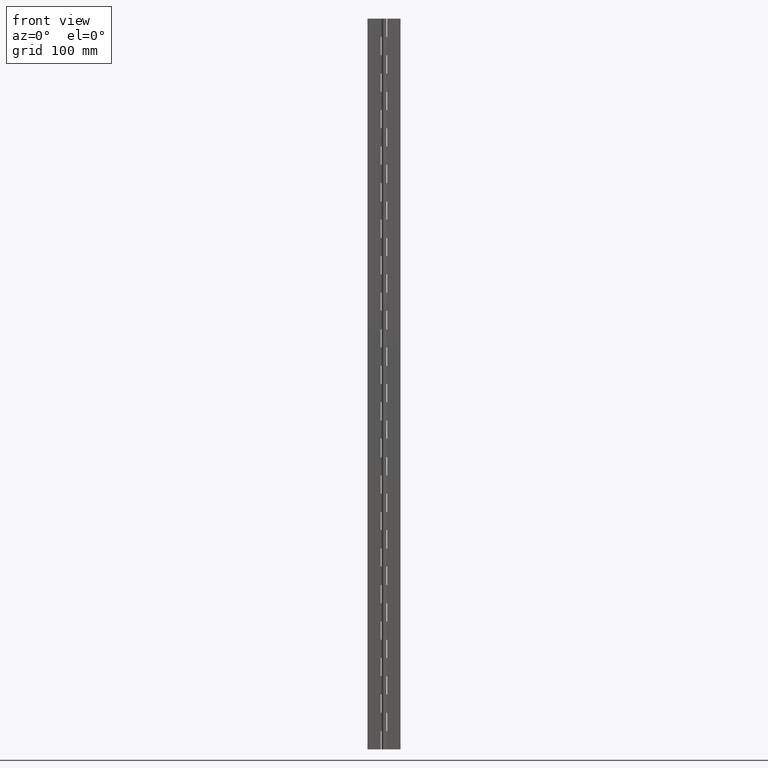
[diagram: clean part render]
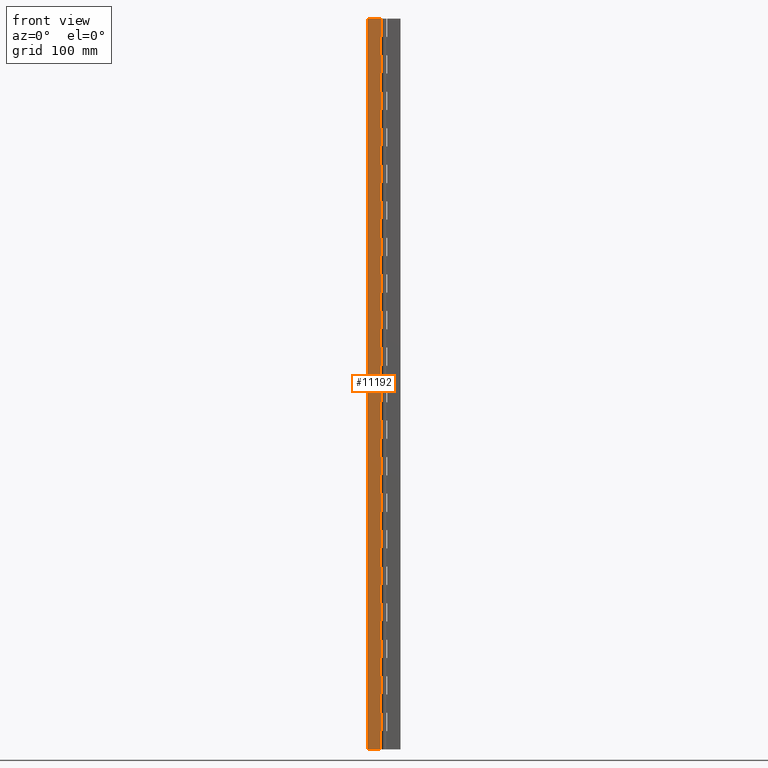
[diagram: same view with one face highlighted and labeled with its STEP entity id]
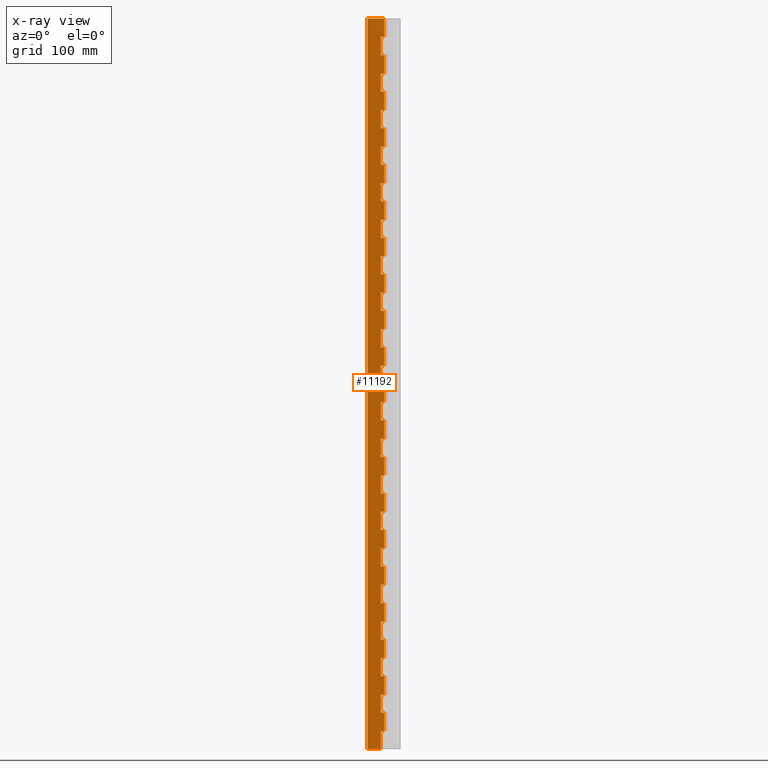
[diagram: x-ray of the same camera — body ghosted, the highlighted face saturated]
A machine part, front view. The second image highlights one B-rep face of the part: STEP entity #11192.
The next image is the same camera in x-ray: the body ghosted, the highlighted face saturated — about 0% of this face is hidden behind the body in this view.
In plain terms, the highlighted face is a freeform B-spline surface patch.
Its self-contained STEP definition (entity closure, byte-faithful):
#5908=CARTESIAN_POINT('',(-4.299995000000000,1.750000000000030,950.0));
#5909=VERTEX_POINT('',#5908);
#5915=CARTESIAN_POINT('',(0.0,1.750000000000000,950.0));
#5916=VERTEX_POINT('',#5915);
#5917=CARTESIAN_POINT('',(-4.299995000000000,1.750000000000030,950.0));
#5918=CARTESIAN_POINT('',(0.0,1.750000000000000,950.0));
#5919=QUASI_UNIFORM_CURVE('',1,(#5917,#5918),.UNSPECIFIED.,.F.,.U.);
#5920=EDGE_CURVE('',#5909,#5916,#5919,.T.);
#5986=CARTESIAN_POINT('',(0.0,1.750000000000000,975.0));
#5987=VERTEX_POINT('',#5986);
#6007=CARTESIAN_POINT('',(-4.299995000000000,1.750000000000030,975.0));
#6008=VERTEX_POINT('',#6007);
#6009=CARTESIAN_POINT('',(0.0,1.750000000000000,975.0));
#6010=CARTESIAN_POINT('',(-4.299995000000000,1.750000000000030,975.0));
#6011=QUASI_UNIFORM_CURVE('',1,(#6009,#6010),.UNSPECIFIED.,.F.,.U.);
#6012=EDGE_CURVE('',#5987,#6008,#6011,.T.);
#6034=CARTESIAN_POINT('',(-4.299995000000000,1.750000000000030,975.0));
#6035=CARTESIAN_POINT('',(-4.299995000000000,1.750000000000030,950.0));
#6036=QUASI_UNIFORM_CURVE('',1,(#6034,#6035),.UNSPECIFIED.,.F.,.U.);
#6037=EDGE_CURVE('',#6008,#5909,#6036,.T.);
#6084=CARTESIAN_POINT('',(-4.299995000000000,1.750000000000030,900.0));
#6085=VERTEX_POINT('',#6084);
#6091=CARTESIAN_POINT('',(0.0,1.750000000000000,900.0));
#6092=VERTEX_POINT('',#6091);
#6093=CARTESIAN_POINT('',(-4.299995000000000,1.750000000000030,900.0));
#6094=CARTESIAN_POINT('',(0.0,1.750000000000000,900.0));
#6095=QUASI_UNIFORM_CURVE('',1,(#6093,#6094),.UNSPECIFIED.,.F.,.U.);
#6096=EDGE_CURVE('',#6085,#6092,#6095,.T.);
#6162=CARTESIAN_POINT('',(0.0,1.750000000000000,925.0));
#6163=VERTEX_POINT('',#6162);
#6183=CARTESIAN_POINT('',(-4.299995000000000,1.750000000000030,925.0));
#6184=VERTEX_POINT('',#6183);
#6185=CARTESIAN_POINT('',(0.0,1.750000000000000,925.0));
#6186=CARTESIAN_POINT('',(-4.299995000000000,1.750000000000030,925.0));
#6187=QUASI_UNIFORM_CURVE('',1,(#6185,#6186),.UNSPECIFIED.,.F.,.U.);
#6188=EDGE_CURVE('',#6163,#6184,#6187,.T.);
#6210=CARTESIAN_POINT('',(-4.299995000000000,1.750000000000030,925.0));
#6211=CARTESIAN_POINT('',(-4.299995000000000,1.750000000000030,900.0));
#6212=QUASI_UNIFORM_CURVE('',1,(#6210,#6211),.UNSPECIFIED.,.F.,.U.);
#6213=EDGE_CURVE('',#6184,#6085,#6212,.T.);
#6260=CARTESIAN_POINT('',(-4.299995000000000,1.750000000000030,850.0));
#6261=VERTEX_POINT('',#6260);
#6267=CARTESIAN_POINT('',(0.0,1.750000000000000,850.0));
#6268=VERTEX_POINT('',#6267);
#6269=CARTESIAN_POINT('',(-4.299995000000000,1.750000000000030,850.0));
#6270=CARTESIAN_POINT('',(0.0,1.750000000000000,850.0));
#6271=QUASI_UNIFORM_CURVE('',1,(#6269,#6270),.UNSPECIFIED.,.F.,.U.);
#6272=EDGE_CURVE('',#6261,#6268,#6271,.T.);
#6338=CARTESIAN_POINT('',(0.0,1.750000000000000,875.0));
#6339=VERTEX_POINT('',#6338);
#6359=CARTESIAN_POINT('',(-4.299995000000000,1.750000000000030,875.0));
#6360=VERTEX_POINT('',#6359);
#6361=CARTESIAN_POINT('',(0.0,1.750000000000000,875.0));
#6362=CARTESIAN_POINT('',(-4.299995000000000,1.750000000000030,875.0));
#6363=QUASI_UNIFORM_CURVE('',1,(#6361,#6362),.UNSPECIFIED.,.F.,.U.);
#6364=EDGE_CURVE('',#6339,#6360,#6363,.T.);
#6386=CARTESIAN_POINT('',(-4.299995000000000,1.750000000000030,875.0));
#6387=CARTESIAN_POINT('',(-4.299995000000000,1.750000000000030,850.0));
#6388=QUASI_UNIFORM_CURVE('',1,(#6386,#6387),.UNSPECIFIED.,.F.,.U.);
#6389=EDGE_CURVE('',#6360,#6261,#6388,.T.);
#6436=CARTESIAN_POINT('',(-4.299995000000000,1.750000000000030,800.0));
#6437=VERTEX_POINT('',#6436);
#6443=CARTESIAN_POINT('',(0.0,1.750000000000000,800.0));
#6444=VERTEX_POINT('',#6443);
#6445=CARTESIAN_POINT('',(-4.299995000000000,1.750000000000030,800.0));
#6446=CARTESIAN_POINT('',(0.0,1.750000000000000,800.0));
#6447=QUASI_UNIFORM_CURVE('',1,(#6445,#6446),.UNSPECIFIED.,.F.,.U.);
#6448=EDGE_CURVE('',#6437,#6444,#6447,.T.);
#6514=CARTESIAN_POINT('',(0.0,1.750000000000000,825.0));
#6515=VERTEX_POINT('',#6514);
#6535=CARTESIAN_POINT('',(-4.299995000000000,1.750000000000030,825.0));
#6536=VERTEX_POINT('',#6535);
#6537=CARTESIAN_POINT('',(0.0,1.750000000000000,825.0));
#6538=CARTESIAN_POINT('',(-4.299995000000000,1.750000000000030,825.0));
#6539=QUASI_UNIFORM_CURVE('',1,(#6537,#6538),.UNSPECIFIED.,.F.,.U.);
#6540=EDGE_CURVE('',#6515,#6536,#6539,.T.);
#6562=CARTESIAN_POINT('',(-4.299995000000000,1.750000000000030,825.0));
#6563=CARTESIAN_POINT('',(-4.299995000000000,1.750000000000030,800.0));
#6564=QUASI_UNIFORM_CURVE('',1,(#6562,#6563),.UNSPECIFIED.,.F.,.U.);
#6565=EDGE_CURVE('',#6536,#6437,#6564,.T.);
#6612=CARTESIAN_POINT('',(-4.299995000000000,1.750000000000030,750.0));
#6613=VERTEX_POINT('',#6612);
#6619=CARTESIAN_POINT('',(0.0,1.750000000000000,750.0));
#6620=VERTEX_POINT('',#6619);
#6621=CARTESIAN_POINT('',(-4.299995000000000,1.750000000000030,750.0));
#6622=CARTESIAN_POINT('',(0.0,1.750000000000000,750.0));
#6623=QUASI_UNIFORM_CURVE('',1,(#6621,#6622),.UNSPECIFIED.,.F.,.U.);
#6624=EDGE_CURVE('',#6613,#6620,#6623,.T.);
#6690=CARTESIAN_POINT('',(0.0,1.750000000000000,775.0));
#6691=VERTEX_POINT('',#6690);
#6711=CARTESIAN_POINT('',(-4.299995000000000,1.750000000000030,775.0));
#6712=VERTEX_POINT('',#6711);
#6713=CARTESIAN_POINT('',(0.0,1.750000000000000,775.0));
#6714=CARTESIAN_POINT('',(-4.299995000000000,1.750000000000030,775.0));
#6715=QUASI_UNIFORM_CURVE('',1,(#6713,#6714),.UNSPECIFIED.,.F.,.U.);
#6716=EDGE_CURVE('',#6691,#6712,#6715,.T.);
#6738=CARTESIAN_POINT('',(-4.299995000000000,1.750000000000030,775.0));
#6739=CARTESIAN_POINT('',(-4.299995000000000,1.750000000000030,750.0));
#6740=QUASI_UNIFORM_CURVE('',1,(#6738,#6739),.UNSPECIFIED.,.F.,.U.);
#6741=EDGE_CURVE('',#6712,#6613,#6740,.T.);
#6788=CARTESIAN_POINT('',(-4.299995000000000,1.750000000000030,700.0));
#6789=VERTEX_POINT('',#6788);
#6795=CARTESIAN_POINT('',(0.0,1.750000000000000,700.0));
#6796=VERTEX_POINT('',#6795);
#6797=CARTESIAN_POINT('',(-4.299995000000000,1.750000000000030,700.0));
#6798=CARTESIAN_POINT('',(0.0,1.750000000000000,700.0));
#6799=QUASI_UNIFORM_CURVE('',1,(#6797,#6798),.UNSPECIFIED.,.F.,.U.);
#6800=EDGE_CURVE('',#6789,#6796,#6799,.T.);
#6866=CARTESIAN_POINT('',(0.0,1.750000000000000,725.0));
#6867=VERTEX_POINT('',#6866);
#6887=CARTESIAN_POINT('',(-4.299995000000000,1.750000000000030,725.0));
#6888=VERTEX_POINT('',#6887);
#6889=CARTESIAN_POINT('',(0.0,1.750000000000000,725.0));
#6890=CARTESIAN_POINT('',(-4.299995000000000,1.750000000000030,725.0));
#6891=QUASI_UNIFORM_CURVE('',1,(#6889,#6890),.UNSPECIFIED.,.F.,.U.);
#6892=EDGE_CURVE('',#6867,#6888,#6891,.T.);
#6914=CARTESIAN_POINT('',(-4.299995000000000,1.750000000000030,725.0));
#6915=CARTESIAN_POINT('',(-4.299995000000000,1.750000000000030,700.0));
#6916=QUASI_UNIFORM_CURVE('',1,(#6914,#6915),.UNSPECIFIED.,.F.,.U.);
#6917=EDGE_CURVE('',#6888,#6789,#6916,.T.);
#6964=CARTESIAN_POINT('',(-4.299995000000000,1.750000000000030,650.0));
#6965=VERTEX_POINT('',#6964);
#6971=CARTESIAN_POINT('',(0.0,1.750000000000000,650.0));
#6972=VERTEX_POINT('',#6971);
#6973=CARTESIAN_POINT('',(-4.299995000000000,1.750000000000030,650.0));
#6974=CARTESIAN_POINT('',(0.0,1.750000000000000,650.0));
#6975=QUASI_UNIFORM_CURVE('',1,(#6973,#6974),.UNSPECIFIED.,.F.,.U.);
#6976=EDGE_CURVE('',#6965,#6972,#6975,.T.);
#7042=CARTESIAN_POINT('',(0.0,1.750000000000000,675.0));
#7043=VERTEX_POINT('',#7042);
#7063=CARTESIAN_POINT('',(-4.299995000000000,1.750000000000030,675.0));
#7064=VERTEX_POINT('',#7063);
#7065=CARTESIAN_POINT('',(0.0,1.750000000000000,675.0));
#7066=CARTESIAN_POINT('',(-4.299995000000000,1.750000000000030,675.0));
#7067=QUASI_UNIFORM_CURVE('',1,(#7065,#7066),.UNSPECIFIED.,.F.,.U.);
#7068=EDGE_CURVE('',#7043,#7064,#7067,.T.);
#7090=CARTESIAN_POINT('',(-4.299995000000000,1.750000000000030,675.0));
#7091=CARTESIAN_POINT('',(-4.299995000000000,1.750000000000030,650.0));
#7092=QUASI_UNIFORM_CURVE('',1,(#7090,#7091),.UNSPECIFIED.,.F.,.U.);
#7093=EDGE_CURVE('',#7064,#6965,#7092,.T.);
#7140=CARTESIAN_POINT('',(-4.299995000000000,1.750000000000030,600.0));
#7141=VERTEX_POINT('',#7140);
#7147=CARTESIAN_POINT('',(0.0,1.750000000000000,600.0));
#7148=VERTEX_POINT('',#7147);
#7149=CARTESIAN_POINT('',(-4.299995000000000,1.750000000000030,600.0));
#7150=CARTESIAN_POINT('',(0.0,1.750000000000000,600.0));
#7151=QUASI_UNIFORM_CURVE('',1,(#7149,#7150),.UNSPECIFIED.,.F.,.U.);
#7152=EDGE_CURVE('',#7141,#7148,#7151,.T.);
#7218=CARTESIAN_POINT('',(0.0,1.750000000000000,625.0));
#7219=VERTEX_POINT('',#7218);
#7239=CARTESIAN_POINT('',(-4.299995000000000,1.750000000000030,625.0));
#7240=VERTEX_POINT('',#7239);
#7241=CARTESIAN_POINT('',(0.0,1.750000000000000,625.0));
#7242=CARTESIAN_POINT('',(-4.299995000000000,1.750000000000030,625.0));
#7243=QUASI_UNIFORM_CURVE('',1,(#7241,#7242),.UNSPECIFIED.,.F.,.U.);
#7244=EDGE_CURVE('',#7219,#7240,#7243,.T.);
#7266=CARTESIAN_POINT('',(-4.299995000000000,1.750000000000030,625.0));
#7267=CARTESIAN_POINT('',(-4.299995000000000,1.750000000000030,600.0));
#7268=QUASI_UNIFORM_CURVE('',1,(#7266,#7267),.UNSPECIFIED.,.F.,.U.);
#7269=EDGE_CURVE('',#7240,#7141,#7268,.T.);
#7316=CARTESIAN_POINT('',(-4.299995000000000,1.750000000000030,550.0));
#7317=VERTEX_POINT('',#7316);
#7323=CARTESIAN_POINT('',(0.0,1.750000000000000,550.0));
#7324=VERTEX_POINT('',#7323);
#7325=CARTESIAN_POINT('',(-4.299995000000000,1.750000000000030,550.0));
#7326=CARTESIAN_POINT('',(0.0,1.750000000000000,550.0));
#7327=QUASI_UNIFORM_CURVE('',1,(#7325,#7326),.UNSPECIFIED.,.F.,.U.);
#7328=EDGE_CURVE('',#7317,#7324,#7327,.T.);
#7394=CARTESIAN_POINT('',(0.0,1.750000000000000,575.0));
#7395=VERTEX_POINT('',#7394);
#7415=CARTESIAN_POINT('',(-4.299995000000000,1.750000000000030,575.0));
#7416=VERTEX_POINT('',#7415);
#7417=CARTESIAN_POINT('',(0.0,1.750000000000000,575.0));
#7418=CARTESIAN_POINT('',(-4.299995000000000,1.750000000000030,575.0));
#7419=QUASI_UNIFORM_CURVE('',1,(#7417,#7418),.UNSPECIFIED.,.F.,.U.);
#7420=EDGE_CURVE('',#7395,#7416,#7419,.T.);
#7442=CARTESIAN_POINT('',(-4.299995000000000,1.750000000000030,575.0));
#7443=CARTESIAN_POINT('',(-4.299995000000000,1.750000000000030,550.0));
#7444=QUASI_UNIFORM_CURVE('',1,(#7442,#7443),.UNSPECIFIED.,.F.,.U.);
#7445=EDGE_CURVE('',#7416,#7317,#7444,.T.);
#7492=CARTESIAN_POINT('',(-4.299995000000000,1.750000000000030,500.0));
#7493=VERTEX_POINT('',#7492);
#7499=CARTESIAN_POINT('',(0.0,1.750000000000000,500.0));
#7500=VERTEX_POINT('',#7499);
#7501=CARTESIAN_POINT('',(-4.299995000000000,1.750000000000030,500.0));
#7502=CARTESIAN_POINT('',(0.0,1.750000000000000,500.0));
#7503=QUASI_UNIFORM_CURVE('',1,(#7501,#7502),.UNSPECIFIED.,.F.,.U.);
#7504=EDGE_CURVE('',#7493,#7500,#7503,.T.);
#7570=CARTESIAN_POINT('',(0.0,1.750000000000000,525.0));
#7571=VERTEX_POINT('',#7570);
#7591=CARTESIAN_POINT('',(-4.299995000000000,1.750000000000030,525.0));
#7592=VERTEX_POINT('',#7591);
#7593=CARTESIAN_POINT('',(0.0,1.750000000000000,525.0));
#7594=CARTESIAN_POINT('',(-4.299995000000000,1.750000000000030,525.0));
#7595=QUASI_UNIFORM_CURVE('',1,(#7593,#7594),.UNSPECIFIED.,.F.,.U.);
#7596=EDGE_CURVE('',#7571,#7592,#7595,.T.);
#7618=CARTESIAN_POINT('',(-4.299995000000000,1.750000000000030,525.0));
#7619=CARTESIAN_POINT('',(-4.299995000000000,1.750000000000030,500.0));
#7620=QUASI_UNIFORM_CURVE('',1,(#7618,#7619),.UNSPECIFIED.,.F.,.U.);
#7621=EDGE_CURVE('',#7592,#7493,#7620,.T.);
#7668=CARTESIAN_POINT('',(-4.299995000000000,1.750000000000030,450.0));
#7669=VERTEX_POINT('',#7668);
#7675=CARTESIAN_POINT('',(0.0,1.750000000000000,450.0));
#7676=VERTEX_POINT('',#7675);
#7677=CARTESIAN_POINT('',(-4.299995000000000,1.750000000000030,450.0));
#7678=CARTESIAN_POINT('',(0.0,1.750000000000000,450.0));
#7679=QUASI_UNIFORM_CURVE('',1,(#7677,#7678),.UNSPECIFIED.,.F.,.U.);
#7680=EDGE_CURVE('',#7669,#7676,#7679,.T.);
#7746=CARTESIAN_POINT('',(0.0,1.750000000000000,475.0));
#7747=VERTEX_POINT('',#7746);
#7767=CARTESIAN_POINT('',(-4.299995000000000,1.750000000000030,475.0));
#7768=VERTEX_POINT('',#7767);
#7769=CARTESIAN_POINT('',(0.0,1.750000000000000,475.0));
#7770=CARTESIAN_POINT('',(-4.299995000000000,1.750000000000030,475.0));
#7771=QUASI_UNIFORM_CURVE('',1,(#7769,#7770),.UNSPECIFIED.,.F.,.U.);
#7772=EDGE_CURVE('',#7747,#7768,#7771,.T.);
#7794=CARTESIAN_POINT('',(-4.299995000000000,1.750000000000030,475.0));
#7795=CARTESIAN_POINT('',(-4.299995000000000,1.750000000000030,450.0));
#7796=QUASI_UNIFORM_CURVE('',1,(#7794,#7795),.UNSPECIFIED.,.F.,.U.);
#7797=EDGE_CURVE('',#7768,#7669,#7796,.T.);
#7844=CARTESIAN_POINT('',(-4.299995000000000,1.750000000000030,400.0));
#7845=VERTEX_POINT('',#7844);
#7851=CARTESIAN_POINT('',(0.0,1.750000000000000,400.0));
#7852=VERTEX_POINT('',#7851);
#7853=CARTESIAN_POINT('',(-4.299995000000000,1.750000000000030,400.0));
#7854=CARTESIAN_POINT('',(0.0,1.750000000000000,400.0));
#7855=QUASI_UNIFORM_CURVE('',1,(#7853,#7854),.UNSPECIFIED.,.F.,.U.);
#7856=EDGE_CURVE('',#7845,#7852,#7855,.T.);
#7922=CARTESIAN_POINT('',(0.0,1.750000000000000,425.0));
#7923=VERTEX_POINT('',#7922);
#7943=CARTESIAN_POINT('',(-4.299995000000000,1.750000000000030,425.0));
#7944=VERTEX_POINT('',#7943);
#7945=CARTESIAN_POINT('',(0.0,1.750000000000000,425.0));
#7946=CARTESIAN_POINT('',(-4.299995000000000,1.750000000000030,425.0));
#7947=QUASI_UNIFORM_CURVE('',1,(#7945,#7946),.UNSPECIFIED.,.F.,.U.);
#7948=EDGE_CURVE('',#7923,#7944,#7947,.T.);
#7970=CARTESIAN_POINT('',(-4.299995000000000,1.750000000000030,425.0));
#7971=CARTESIAN_POINT('',(-4.299995000000000,1.750000000000030,400.0));
#7972=QUASI_UNIFORM_CURVE('',1,(#7970,#7971),.UNSPECIFIED.,.F.,.U.);
#7973=EDGE_CURVE('',#7944,#7845,#7972,.T.);
#8020=CARTESIAN_POINT('',(-4.299995000000000,1.750000000000030,350.0));
#8021=VERTEX_POINT('',#8020);
#8027=CARTESIAN_POINT('',(0.0,1.750000000000000,350.0));
#8028=VERTEX_POINT('',#8027);
#8029=CARTESIAN_POINT('',(-4.299995000000000,1.750000000000030,350.0));
#8030=CARTESIAN_POINT('',(0.0,1.750000000000000,350.0));
#8031=QUASI_UNIFORM_CURVE('',1,(#8029,#8030),.UNSPECIFIED.,.F.,.U.);
#8032=EDGE_CURVE('',#8021,#8028,#8031,.T.);
#8098=CARTESIAN_POINT('',(0.0,1.750000000000000,375.0));
#8099=VERTEX_POINT('',#8098);
#8119=CARTESIAN_POINT('',(-4.299995000000000,1.750000000000030,375.0));
#8120=VERTEX_POINT('',#8119);
#8121=CARTESIAN_POINT('',(0.0,1.750000000000000,375.0));
#8122=CARTESIAN_POINT('',(-4.299995000000000,1.750000000000030,375.0));
#8123=QUASI_UNIFORM_CURVE('',1,(#8121,#8122),.UNSPECIFIED.,.F.,.U.);
#8124=EDGE_CURVE('',#8099,#8120,#8123,.T.);
#8146=CARTESIAN_POINT('',(-4.299995000000000,1.750000000000030,375.0));
#8147=CARTESIAN_POINT('',(-4.299995000000000,1.750000000000030,350.0));
#8148=QUASI_UNIFORM_CURVE('',1,(#8146,#8147),.UNSPECIFIED.,.F.,.U.);
#8149=EDGE_CURVE('',#8120,#8021,#8148,.T.);
#8196=CARTESIAN_POINT('',(-4.299995000000000,1.750000000000030,300.0));
#8197=VERTEX_POINT('',#8196);
#8203=CARTESIAN_POINT('',(0.0,1.750000000000000,300.0));
#8204=VERTEX_POINT('',#8203);
#8205=CARTESIAN_POINT('',(-4.299995000000000,1.750000000000030,300.0));
#8206=CARTESIAN_POINT('',(0.0,1.750000000000000,300.0));
#8207=QUASI_UNIFORM_CURVE('',1,(#8205,#8206),.UNSPECIFIED.,.F.,.U.);
#8208=EDGE_CURVE('',#8197,#8204,#8207,.T.);
#8274=CARTESIAN_POINT('',(0.0,1.750000000000000,325.0));
#8275=VERTEX_POINT('',#8274);
#8295=CARTESIAN_POINT('',(-4.299995000000000,1.750000000000030,325.0));
#8296=VERTEX_POINT('',#8295);
#8297=CARTESIAN_POINT('',(0.0,1.750000000000000,325.0));
#8298=CARTESIAN_POINT('',(-4.299995000000000,1.750000000000030,325.0));
#8299=QUASI_UNIFORM_CURVE('',1,(#8297,#8298),.UNSPECIFIED.,.F.,.U.);
#8300=EDGE_CURVE('',#8275,#8296,#8299,.T.);
#8322=CARTESIAN_POINT('',(-4.299995000000000,1.750000000000030,325.0));
#8323=CARTESIAN_POINT('',(-4.299995000000000,1.750000000000030,300.0));
#8324=QUASI_UNIFORM_CURVE('',1,(#8322,#8323),.UNSPECIFIED.,.F.,.U.);
#8325=EDGE_CURVE('',#8296,#8197,#8324,.T.);
#8372=CARTESIAN_POINT('',(-4.299995000000000,1.750000000000030,250.0));
#8373=VERTEX_POINT('',#8372);
#8379=CARTESIAN_POINT('',(0.0,1.750000000000000,250.0));
#8380=VERTEX_POINT('',#8379);
#8381=CARTESIAN_POINT('',(-4.299995000000000,1.750000000000030,250.0));
#8382=CARTESIAN_POINT('',(0.0,1.750000000000000,250.0));
#8383=QUASI_UNIFORM_CURVE('',1,(#8381,#8382),.UNSPECIFIED.,.F.,.U.);
#8384=EDGE_CURVE('',#8373,#8380,#8383,.T.);
#8450=CARTESIAN_POINT('',(0.0,1.750000000000000,275.0));
#8451=VERTEX_POINT('',#8450);
#8471=CARTESIAN_POINT('',(-4.299995000000000,1.750000000000030,275.0));
#8472=VERTEX_POINT('',#8471);
#8473=CARTESIAN_POINT('',(0.0,1.750000000000000,275.0));
#8474=CARTESIAN_POINT('',(-4.299995000000000,1.750000000000030,275.0));
#8475=QUASI_UNIFORM_CURVE('',1,(#8473,#8474),.UNSPECIFIED.,.F.,.U.);
#8476=EDGE_CURVE('',#8451,#8472,#8475,.T.);
#8498=CARTESIAN_POINT('',(-4.299995000000000,1.750000000000030,275.0));
#8499=CARTESIAN_POINT('',(-4.299995000000000,1.750000000000030,250.0));
#8500=QUASI_UNIFORM_CURVE('',1,(#8498,#8499),.UNSPECIFIED.,.F.,.U.);
#8501=EDGE_CURVE('',#8472,#8373,#8500,.T.);
#8548=CARTESIAN_POINT('',(-4.299995000000000,1.750000000000030,200.0));
#8549=VERTEX_POINT('',#8548);
#8555=CARTESIAN_POINT('',(0.0,1.750000000000000,200.0));
#8556=VERTEX_POINT('',#8555);
#8557=CARTESIAN_POINT('',(-4.299995000000000,1.750000000000030,200.0));
#8558=CARTESIAN_POINT('',(0.0,1.750000000000000,200.0));
#8559=QUASI_UNIFORM_CURVE('',1,(#8557,#8558),.UNSPECIFIED.,.F.,.U.);
#8560=EDGE_CURVE('',#8549,#8556,#8559,.T.);
#8626=CARTESIAN_POINT('',(0.0,1.750000000000000,225.0));
#8627=VERTEX_POINT('',#8626);
#8647=CARTESIAN_POINT('',(-4.299995000000000,1.750000000000030,225.0));
#8648=VERTEX_POINT('',#8647);
#8649=CARTESIAN_POINT('',(0.0,1.750000000000000,225.0));
#8650=CARTESIAN_POINT('',(-4.299995000000000,1.750000000000030,225.0));
#8651=QUASI_UNIFORM_CURVE('',1,(#8649,#8650),.UNSPECIFIED.,.F.,.U.);
#8652=EDGE_CURVE('',#8627,#8648,#8651,.T.);
#8674=CARTESIAN_POINT('',(-4.299995000000000,1.750000000000030,225.0));
#8675=CARTESIAN_POINT('',(-4.299995000000000,1.750000000000030,200.0));
#8676=QUASI_UNIFORM_CURVE('',1,(#8674,#8675),.UNSPECIFIED.,.F.,.U.);
#8677=EDGE_CURVE('',#8648,#8549,#8676,.T.);
#8724=CARTESIAN_POINT('',(-4.299995000000000,1.750000000000030,150.0));
#8725=VERTEX_POINT('',#8724);
#8731=CARTESIAN_POINT('',(0.0,1.750000000000000,150.0));
#8732=VERTEX_POINT('',#8731);
#8733=CARTESIAN_POINT('',(-4.299995000000000,1.750000000000030,150.0));
#8734=CARTESIAN_POINT('',(0.0,1.750000000000000,150.0));
#8735=QUASI_UNIFORM_CURVE('',1,(#8733,#8734),.UNSPECIFIED.,.F.,.U.);
#8736=EDGE_CURVE('',#8725,#8732,#8735,.T.);
#8802=CARTESIAN_POINT('',(0.0,1.750000000000000,175.0));
#8803=VERTEX_POINT('',#8802);
#8823=CARTESIAN_POINT('',(-4.299995000000000,1.750000000000030,175.0));
#8824=VERTEX_POINT('',#8823);
#8825=CARTESIAN_POINT('',(0.0,1.750000000000000,175.0));
#8826=CARTESIAN_POINT('',(-4.299995000000000,1.750000000000030,175.0));
#8827=QUASI_UNIFORM_CURVE('',1,(#8825,#8826),.UNSPECIFIED.,.F.,.U.);
#8828=EDGE_CURVE('',#8803,#8824,#8827,.T.);
#8850=CARTESIAN_POINT('',(-4.299995000000000,1.750000000000030,175.0));
#8851=CARTESIAN_POINT('',(-4.299995000000000,1.750000000000030,150.0));
#8852=QUASI_UNIFORM_CURVE('',1,(#8850,#8851),.UNSPECIFIED.,.F.,.U.);
#8853=EDGE_CURVE('',#8824,#8725,#8852,.T.);
#8900=CARTESIAN_POINT('',(-4.299995000000000,1.750000000000030,100.0));
#8901=VERTEX_POINT('',#8900);
#8907=CARTESIAN_POINT('',(0.0,1.750000000000000,100.0));
#8908=VERTEX_POINT('',#8907);
#8909=CARTESIAN_POINT('',(-4.299995000000000,1.750000000000030,100.0));
#8910=CARTESIAN_POINT('',(0.0,1.750000000000000,100.0));
#8911=QUASI_UNIFORM_CURVE('',1,(#8909,#8910),.UNSPECIFIED.,.F.,.U.);
#8912=EDGE_CURVE('',#8901,#8908,#8911,.T.);
#8978=CARTESIAN_POINT('',(0.0,1.750000000000000,125.0));
#8979=VERTEX_POINT('',#8978);
#8999=CARTESIAN_POINT('',(-4.299995000000000,1.750000000000030,125.0));
#9000=VERTEX_POINT('',#8999);
#9001=CARTESIAN_POINT('',(0.0,1.750000000000000,125.0));
#9002=CARTESIAN_POINT('',(-4.299995000000000,1.750000000000030,125.0));
#9003=QUASI_UNIFORM_CURVE('',1,(#9001,#9002),.UNSPECIFIED.,.F.,.U.);
#9004=EDGE_CURVE('',#8979,#9000,#9003,.T.);
#9026=CARTESIAN_POINT('',(-4.299995000000000,1.750000000000030,125.0));
#9027=CARTESIAN_POINT('',(-4.299995000000000,1.750000000000030,100.0));
#9028=QUASI_UNIFORM_CURVE('',1,(#9026,#9027),.UNSPECIFIED.,.F.,.U.);
#9029=EDGE_CURVE('',#9000,#8901,#9028,.T.);
#9076=CARTESIAN_POINT('',(-4.299995000000000,1.750000000000030,50.0));
#9077=VERTEX_POINT('',#9076);
#9083=CARTESIAN_POINT('',(0.0,1.750000000000000,50.0));
#9084=VERTEX_POINT('',#9083);
#9085=CARTESIAN_POINT('',(-4.299995000000000,1.750000000000030,50.0));
#9086=CARTESIAN_POINT('',(0.0,1.750000000000000,50.0));
#9087=QUASI_UNIFORM_CURVE('',1,(#9085,#9086),.UNSPECIFIED.,.F.,.U.);
#9088=EDGE_CURVE('',#9077,#9084,#9087,.T.);
#9154=CARTESIAN_POINT('',(0.0,1.750000000000000,75.0));
#9155=VERTEX_POINT('',#9154);
#9175=CARTESIAN_POINT('',(-4.299995000000000,1.750000000000030,75.0));
#9176=VERTEX_POINT('',#9175);
#9177=CARTESIAN_POINT('',(0.0,1.750000000000000,75.0));
#9178=CARTESIAN_POINT('',(-4.299995000000000,1.750000000000030,75.0));
#9179=QUASI_UNIFORM_CURVE('',1,(#9177,#9178),.UNSPECIFIED.,.F.,.U.);
#9180=EDGE_CURVE('',#9155,#9176,#9179,.T.);
#9202=CARTESIAN_POINT('',(-4.299995000000000,1.750000000000030,75.0));
#9203=CARTESIAN_POINT('',(-4.299995000000000,1.750000000000030,50.0));
#9204=QUASI_UNIFORM_CURVE('',1,(#9202,#9203),.UNSPECIFIED.,.F.,.U.);
#9205=EDGE_CURVE('',#9176,#9077,#9204,.T.);
#9222=CARTESIAN_POINT('',(-4.299995000000000,1.750000000000030,25.0));
#9223=VERTEX_POINT('',#9222);
#9224=CARTESIAN_POINT('',(-4.299995000000000,1.750000000000000,0.0));
#9225=VERTEX_POINT('',#9224);
#9226=CARTESIAN_POINT('',(-4.299995000000000,1.750000000000030,25.0));
#9227=CARTESIAN_POINT('',(-4.299995000000000,1.750000000000000,0.0));
#9228=QUASI_UNIFORM_CURVE('',1,(#9226,#9227),.UNSPECIFIED.,.F.,.U.);
#9229=EDGE_CURVE('',#9223,#9225,#9228,.T.);
#9288=CARTESIAN_POINT('',(0.0,1.750000000000000,25.0));
#9289=VERTEX_POINT('',#9288);
#9309=CARTESIAN_POINT('',(0.0,1.750000000000000,25.0));
#9310=CARTESIAN_POINT('',(-4.299995000000000,1.750000000000030,25.0));
#9311=QUASI_UNIFORM_CURVE('',1,(#9309,#9310),.UNSPECIFIED.,.F.,.U.);
#9312=EDGE_CURVE('',#9289,#9223,#9311,.T.);
#9358=CARTESIAN_POINT('',(-22.500000000000000,1.750000000000000,999.999977999999940));
#9359=VERTEX_POINT('',#9358);
#9365=CARTESIAN_POINT('',(0.0,1.750000000000000,999.999977999999940));
#9366=VERTEX_POINT('',#9365);
#9367=CARTESIAN_POINT('',(-22.500000000000000,1.750000000000000,999.999977999999940));
#9368=CARTESIAN_POINT('',(0.0,1.750000000000000,999.999977999999940));
#9369=QUASI_UNIFORM_CURVE('',1,(#9367,#9368),.UNSPECIFIED.,.F.,.U.);
#9370=EDGE_CURVE('',#9359,#9366,#9369,.T.);
#9408=CARTESIAN_POINT('',(-22.500000000000000,1.750000000000000,0.0));
#9409=VERTEX_POINT('',#9408);
#9415=CARTESIAN_POINT('',(-22.500000000000000,1.750000000000000,999.999977999999940));
#9416=CARTESIAN_POINT('',(-22.500000000000000,1.750000000000000,0.0));
#9417=QUASI_UNIFORM_CURVE('',1,(#9415,#9416),.UNSPECIFIED.,.F.,.U.);
#9418=EDGE_CURVE('',#9359,#9409,#9417,.T.);
#9435=CARTESIAN_POINT('',(-22.500000000000000,1.750000000000000,0.0));
#9436=CARTESIAN_POINT('',(-4.299995000000000,1.750000000000000,0.0));
#9437=QUASI_UNIFORM_CURVE('',1,(#9435,#9436),.UNSPECIFIED.,.F.,.U.);
#9438=EDGE_CURVE('',#9409,#9225,#9437,.T.);
#9493=CARTESIAN_POINT('',(0.0,1.750000000000000,50.0));
#9494=CARTESIAN_POINT('',(0.0,1.750000000000000,25.0));
#9495=QUASI_UNIFORM_CURVE('',1,(#9493,#9494),.UNSPECIFIED.,.F.,.U.);
#9496=EDGE_CURVE('',#9084,#9289,#9495,.T.);
#9579=CARTESIAN_POINT('',(0.0,1.750000000000000,100.0));
#9580=CARTESIAN_POINT('',(0.0,1.750000000000000,75.0));
#9581=QUASI_UNIFORM_CURVE('',1,(#9579,#9580),.UNSPECIFIED.,.F.,.U.);
#9582=EDGE_CURVE('',#8908,#9155,#9581,.T.);
#9665=CARTESIAN_POINT('',(0.0,1.750000000000000,150.0));
#9666=CARTESIAN_POINT('',(0.0,1.750000000000000,125.0));
#9667=QUASI_UNIFORM_CURVE('',1,(#9665,#9666),.UNSPECIFIED.,.F.,.U.);
#9668=EDGE_CURVE('',#8732,#8979,#9667,.T.);
#9751=CARTESIAN_POINT('',(0.0,1.750000000000000,200.0));
#9752=CARTESIAN_POINT('',(0.0,1.750000000000000,175.0));
#9753=QUASI_UNIFORM_CURVE('',1,(#9751,#9752),.UNSPECIFIED.,.F.,.U.);
#9754=EDGE_CURVE('',#8556,#8803,#9753,.T.);
#9837=CARTESIAN_POINT('',(0.0,1.750000000000000,250.0));
#9838=CARTESIAN_POINT('',(0.0,1.750000000000000,225.0));
#9839=QUASI_UNIFORM_CURVE('',1,(#9837,#9838),.UNSPECIFIED.,.F.,.U.);
#9840=EDGE_CURVE('',#8380,#8627,#9839,.T.);
#9923=CARTESIAN_POINT('',(0.0,1.750000000000000,300.0));
#9924=CARTESIAN_POINT('',(0.0,1.750000000000000,275.0));
#9925=QUASI_UNIFORM_CURVE('',1,(#9923,#9924),.UNSPECIFIED.,.F.,.U.);
#9926=EDGE_CURVE('',#8204,#8451,#9925,.T.);
#10009=CARTESIAN_POINT('',(0.0,1.750000000000000,350.0));
#10010=CARTESIAN_POINT('',(0.0,1.750000000000000,325.0));
#10011=QUASI_UNIFORM_CURVE('',1,(#10009,#10010),.UNSPECIFIED.,.F.,.U.);
#10012=EDGE_CURVE('',#8028,#8275,#10011,.T.);
#10095=CARTESIAN_POINT('',(0.0,1.750000000000000,400.0));
#10096=CARTESIAN_POINT('',(0.0,1.750000000000000,375.0));
#10097=QUASI_UNIFORM_CURVE('',1,(#10095,#10096),.UNSPECIFIED.,.F.,.U.);
#10098=EDGE_CURVE('',#7852,#8099,#10097,.T.);
#10181=CARTESIAN_POINT('',(0.0,1.750000000000000,450.0));
#10182=CARTESIAN_POINT('',(0.0,1.750000000000000,425.0));
#10183=QUASI_UNIFORM_CURVE('',1,(#10181,#10182),.UNSPECIFIED.,.F.,.U.);
#10184=EDGE_CURVE('',#7676,#7923,#10183,.T.);
#10267=CARTESIAN_POINT('',(0.0,1.750000000000000,500.0));
#10268=CARTESIAN_POINT('',(0.0,1.750000000000000,475.0));
#10269=QUASI_UNIFORM_CURVE('',1,(#10267,#10268),.UNSPECIFIED.,.F.,.U.);
#10270=EDGE_CURVE('',#7500,#7747,#10269,.T.);
#10353=CARTESIAN_POINT('',(0.0,1.750000000000000,550.0));
#10354=CARTESIAN_POINT('',(0.0,1.750000000000000,525.0));
#10355=QUASI_UNIFORM_CURVE('',1,(#10353,#10354),.UNSPECIFIED.,.F.,.U.);
#10356=EDGE_CURVE('',#7324,#7571,#10355,.T.);
#10439=CARTESIAN_POINT('',(0.0,1.750000000000000,600.0));
#10440=CARTESIAN_POINT('',(0.0,1.750000000000000,575.0));
#10441=QUASI_UNIFORM_CURVE('',1,(#10439,#10440),.UNSPECIFIED.,.F.,.U.);
#10442=EDGE_CURVE('',#7148,#7395,#10441,.T.);
#10525=CARTESIAN_POINT('',(0.0,1.750000000000000,650.0));
#10526=CARTESIAN_POINT('',(0.0,1.750000000000000,625.0));
#10527=QUASI_UNIFORM_CURVE('',1,(#10525,#10526),.UNSPECIFIED.,.F.,.U.);
#10528=EDGE_CURVE('',#6972,#7219,#10527,.T.);
#10611=CARTESIAN_POINT('',(0.0,1.750000000000000,700.0));
#10612=CARTESIAN_POINT('',(0.0,1.750000000000000,675.0));
#10613=QUASI_UNIFORM_CURVE('',1,(#10611,#10612),.UNSPECIFIED.,.F.,.U.);
#10614=EDGE_CURVE('',#6796,#7043,#10613,.T.);
#10697=CARTESIAN_POINT('',(0.0,1.750000000000000,750.0));
#10698=CARTESIAN_POINT('',(0.0,1.750000000000000,725.0));
#10699=QUASI_UNIFORM_CURVE('',1,(#10697,#10698),.UNSPECIFIED.,.F.,.U.);
#10700=EDGE_CURVE('',#6620,#6867,#10699,.T.);
#10783=CARTESIAN_POINT('',(0.0,1.750000000000000,800.0));
#10784=CARTESIAN_POINT('',(0.0,1.750000000000000,775.0));
#10785=QUASI_UNIFORM_CURVE('',1,(#10783,#10784),.UNSPECIFIED.,.F.,.U.);
#10786=EDGE_CURVE('',#6444,#6691,#10785,.T.);
#10869=CARTESIAN_POINT('',(0.0,1.750000000000000,850.0));
#10870=CARTESIAN_POINT('',(0.0,1.750000000000000,825.0));
#10871=QUASI_UNIFORM_CURVE('',1,(#10869,#10870),.UNSPECIFIED.,.F.,.U.);
#10872=EDGE_CURVE('',#6268,#6515,#10871,.T.);
#10955=CARTESIAN_POINT('',(0.0,1.750000000000000,900.0));
#10956=CARTESIAN_POINT('',(0.0,1.750000000000000,875.0));
#10957=QUASI_UNIFORM_CURVE('',1,(#10955,#10956),.UNSPECIFIED.,.F.,.U.);
#10958=EDGE_CURVE('',#6092,#6339,#10957,.T.);
#11061=CARTESIAN_POINT('',(0.0,1.750000000000000,950.0));
#11062=CARTESIAN_POINT('',(0.0,1.750000000000000,925.0));
#11063=QUASI_UNIFORM_CURVE('',1,(#11061,#11062),.UNSPECIFIED.,.F.,.U.);
#11064=EDGE_CURVE('',#5916,#6163,#11063,.T.);
#11092=CARTESIAN_POINT('',(0.0,1.750000000000000,999.999977999999940));
#11093=CARTESIAN_POINT('',(0.0,1.750000000000000,975.0));
#11094=QUASI_UNIFORM_CURVE('',1,(#11092,#11093),.UNSPECIFIED.,.F.,.U.);
#11095=EDGE_CURVE('',#9366,#5987,#11094,.T.);
#11103=CARTESIAN_POINT('',(-23.623874956390630,1.750000000000000,-49.949996962906042));
#11104=CARTESIAN_POINT('',(-23.623874956390630,1.750000000000000,1049.950001784995900));
#11105=CARTESIAN_POINT('',(1.123875559887663,1.750000000000000,-49.949996962906042));
#11106=CARTESIAN_POINT('',(1.123875559887663,1.750000000000000,1049.950001784995900));
#11107=B_SPLINE_SURFACE_WITH_KNOTS('',1,1,((#11103,#11105),(#11104,#11106)),.UNSPECIFIED.,.F.,.F.,.U.,(2,2),(2,2),(0.0,1099.899998747901900),(0.0,24.747750516278298),.UNSPECIFIED.);
#11108=ORIENTED_EDGE('',*,*,#6012,.F.);
#11109=ORIENTED_EDGE('',*,*,#11095,.F.);
#11110=ORIENTED_EDGE('',*,*,#9370,.F.);
#11111=ORIENTED_EDGE('',*,*,#9418,.T.);
#11112=ORIENTED_EDGE('',*,*,#9438,.T.);
#11113=ORIENTED_EDGE('',*,*,#9229,.F.);
#11114=ORIENTED_EDGE('',*,*,#9312,.F.);
#11115=ORIENTED_EDGE('',*,*,#9496,.F.);
#11116=ORIENTED_EDGE('',*,*,#9088,.F.);
#11117=ORIENTED_EDGE('',*,*,#9205,.F.);
#11118=ORIENTED_EDGE('',*,*,#9180,.F.);
#11119=ORIENTED_EDGE('',*,*,#9582,.F.);
#11120=ORIENTED_EDGE('',*,*,#8912,.F.);
#11121=ORIENTED_EDGE('',*,*,#9029,.F.);
#11122=ORIENTED_EDGE('',*,*,#9004,.F.);
#11123=ORIENTED_EDGE('',*,*,#9668,.F.);
#11124=ORIENTED_EDGE('',*,*,#8736,.F.);
#11125=ORIENTED_EDGE('',*,*,#8853,.F.);
#11126=ORIENTED_EDGE('',*,*,#8828,.F.);
#11127=ORIENTED_EDGE('',*,*,#9754,.F.);
#11128=ORIENTED_EDGE('',*,*,#8560,.F.);
#11129=ORIENTED_EDGE('',*,*,#8677,.F.);
#11130=ORIENTED_EDGE('',*,*,#8652,.F.);
#11131=ORIENTED_EDGE('',*,*,#9840,.F.);
#11132=ORIENTED_EDGE('',*,*,#8384,.F.);
#11133=ORIENTED_EDGE('',*,*,#8501,.F.);
#11134=ORIENTED_EDGE('',*,*,#8476,.F.);
#11135=ORIENTED_EDGE('',*,*,#9926,.F.);
#11136=ORIENTED_EDGE('',*,*,#8208,.F.);
#11137=ORIENTED_EDGE('',*,*,#8325,.F.);
#11138=ORIENTED_EDGE('',*,*,#8300,.F.);
#11139=ORIENTED_EDGE('',*,*,#10012,.F.);
#11140=ORIENTED_EDGE('',*,*,#8032,.F.);
#11141=ORIENTED_EDGE('',*,*,#8149,.F.);
#11142=ORIENTED_EDGE('',*,*,#8124,.F.);
#11143=ORIENTED_EDGE('',*,*,#10098,.F.);
#11144=ORIENTED_EDGE('',*,*,#7856,.F.);
#11145=ORIENTED_EDGE('',*,*,#7973,.F.);
#11146=ORIENTED_EDGE('',*,*,#7948,.F.);
#11147=ORIENTED_EDGE('',*,*,#10184,.F.);
#11148=ORIENTED_EDGE('',*,*,#7680,.F.);
#11149=ORIENTED_EDGE('',*,*,#7797,.F.);
#11150=ORIENTED_EDGE('',*,*,#7772,.F.);
#11151=ORIENTED_EDGE('',*,*,#10270,.F.);
#11152=ORIENTED_EDGE('',*,*,#7504,.F.);
#11153=ORIENTED_EDGE('',*,*,#7621,.F.);
#11154=ORIENTED_EDGE('',*,*,#7596,.F.);
#11155=ORIENTED_EDGE('',*,*,#10356,.F.);
#11156=ORIENTED_EDGE('',*,*,#7328,.F.);
#11157=ORIENTED_EDGE('',*,*,#7445,.F.);
#11158=ORIENTED_EDGE('',*,*,#7420,.F.);
#11159=ORIENTED_EDGE('',*,*,#10442,.F.);
#11160=ORIENTED_EDGE('',*,*,#7152,.F.);
#11161=ORIENTED_EDGE('',*,*,#7269,.F.);
#11162=ORIENTED_EDGE('',*,*,#7244,.F.);
#11163=ORIENTED_EDGE('',*,*,#10528,.F.);
#11164=ORIENTED_EDGE('',*,*,#6976,.F.);
#11165=ORIENTED_EDGE('',*,*,#7093,.F.);
#11166=ORIENTED_EDGE('',*,*,#7068,.F.);
#11167=ORIENTED_EDGE('',*,*,#10614,.F.);
#11168=ORIENTED_EDGE('',*,*,#6800,.F.);
#11169=ORIENTED_EDGE('',*,*,#6917,.F.);
#11170=ORIENTED_EDGE('',*,*,#6892,.F.);
#11171=ORIENTED_EDGE('',*,*,#10700,.F.);
#11172=ORIENTED_EDGE('',*,*,#6624,.F.);
#11173=ORIENTED_EDGE('',*,*,#6741,.F.);
#11174=ORIENTED_EDGE('',*,*,#6716,.F.);
#11175=ORIENTED_EDGE('',*,*,#10786,.F.);
#11176=ORIENTED_EDGE('',*,*,#6448,.F.);
#11177=ORIENTED_EDGE('',*,*,#6565,.F.);
#11178=ORIENTED_EDGE('',*,*,#6540,.F.);
#11179=ORIENTED_EDGE('',*,*,#10872,.F.);
#11180=ORIENTED_EDGE('',*,*,#6272,.F.);
#11181=ORIENTED_EDGE('',*,*,#6389,.F.);
#11182=ORIENTED_EDGE('',*,*,#6364,.F.);
#11183=ORIENTED_EDGE('',*,*,#10958,.F.);
#11184=ORIENTED_EDGE('',*,*,#6096,.F.);
#11185=ORIENTED_EDGE('',*,*,#6213,.F.);
#11186=ORIENTED_EDGE('',*,*,#6188,.F.);
#11187=ORIENTED_EDGE('',*,*,#11064,.F.);
#11188=ORIENTED_EDGE('',*,*,#5920,.F.);
#11189=ORIENTED_EDGE('',*,*,#6037,.F.);
#11190=EDGE_LOOP('',(#11108,#11109,#11110,#11111,#11112,#11113,#11114,#11115,#11116,#11117,#11118,#11119,#11120,#11121,#11122,#11123,#11124,#11125,#11126,#11127,#11128,#11129,#11130,#11131,#11132,#11133,#11134,#11135,#11136,#11137,#11138,#11139,#11140,#11141,#11142,#11143,#11144,#11145,#11146,#11147,#11148,#11149,#11150,#11151,#11152,#11153,#11154,#11155,#11156,#11157,#11158,#11159,#11160,#11161,#11162,#11163,#11164,#11165,#11166,#11167,#11168,#11169,#11170,#11171,#11172,#11173,#11174,#11175,#11176,#11177,#11178,#11179,#11180,#11181,#11182,#11183,#11184,#11185,#11186,#11187,#11188,#11189));
#11191=FACE_OUTER_BOUND('',#11190,.T.);
#11192=ADVANCED_FACE('',(#11191),#11107,.F.);